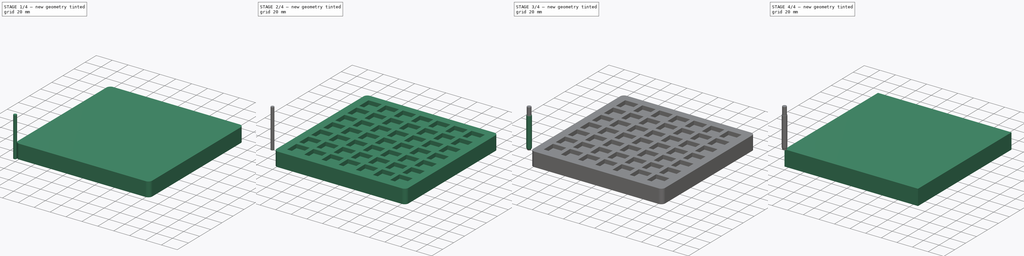
[diagram: build sequence overview — one tinted view per stage of 4, left to right]
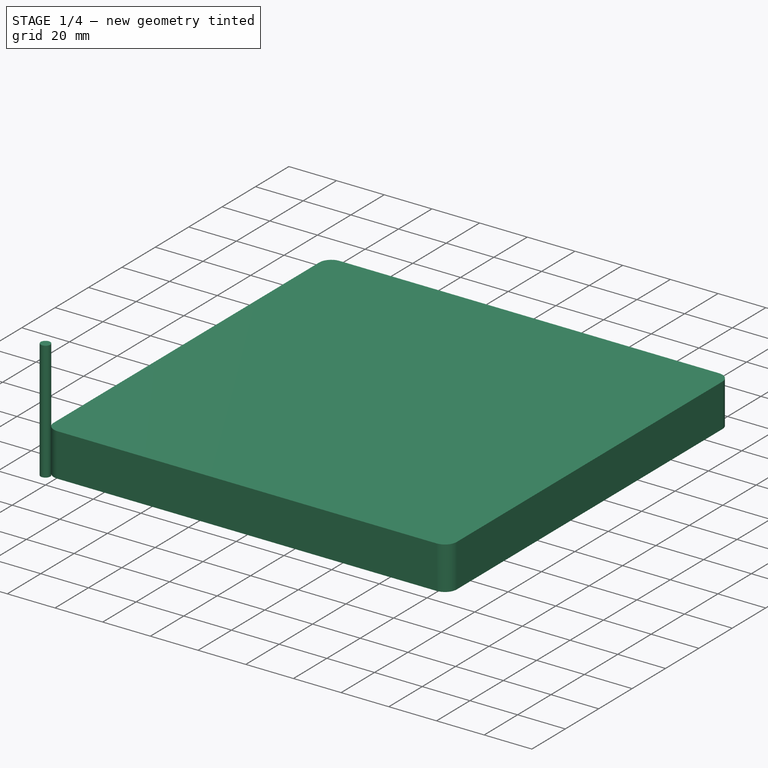
[diagram: stage 1 of 4 — iso view after this stage's code; geometry added in this stage tinted green]
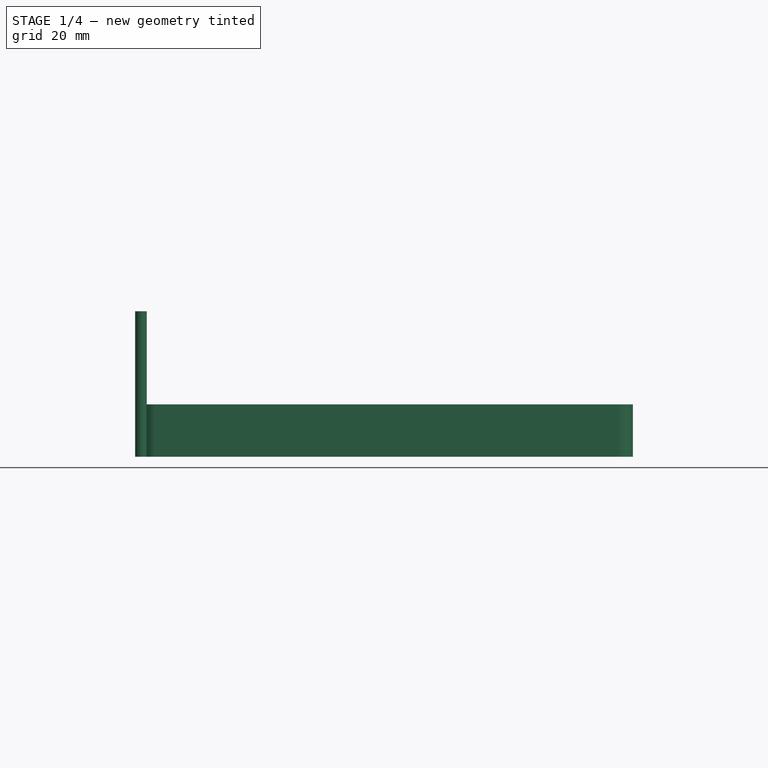
[diagram: stage 1 of 4 — front view after this stage's code; geometry added in this stage tinted green]
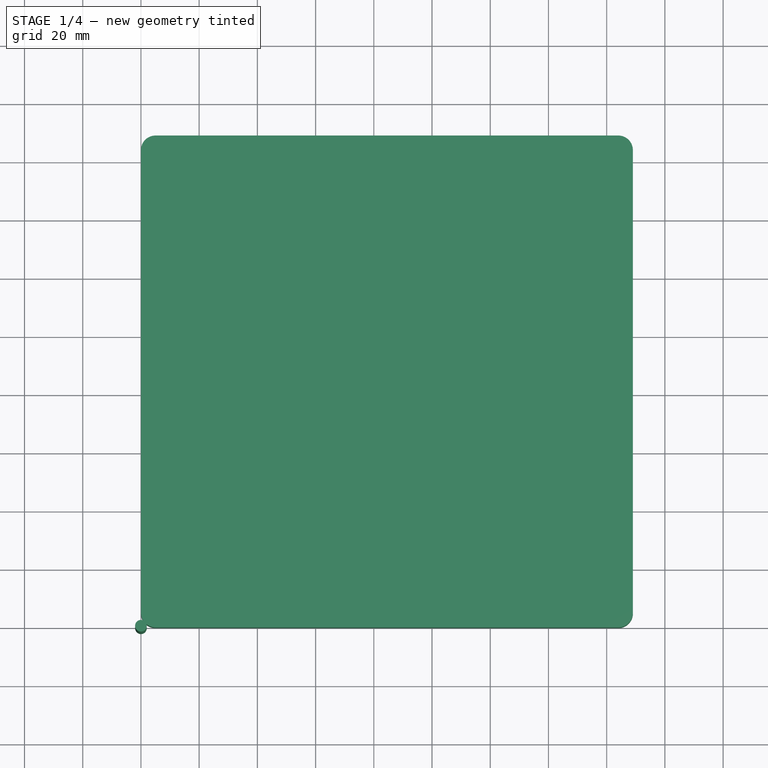
[diagram: stage 1 of 4 — top view after this stage's code; geometry added in this stage tinted green]
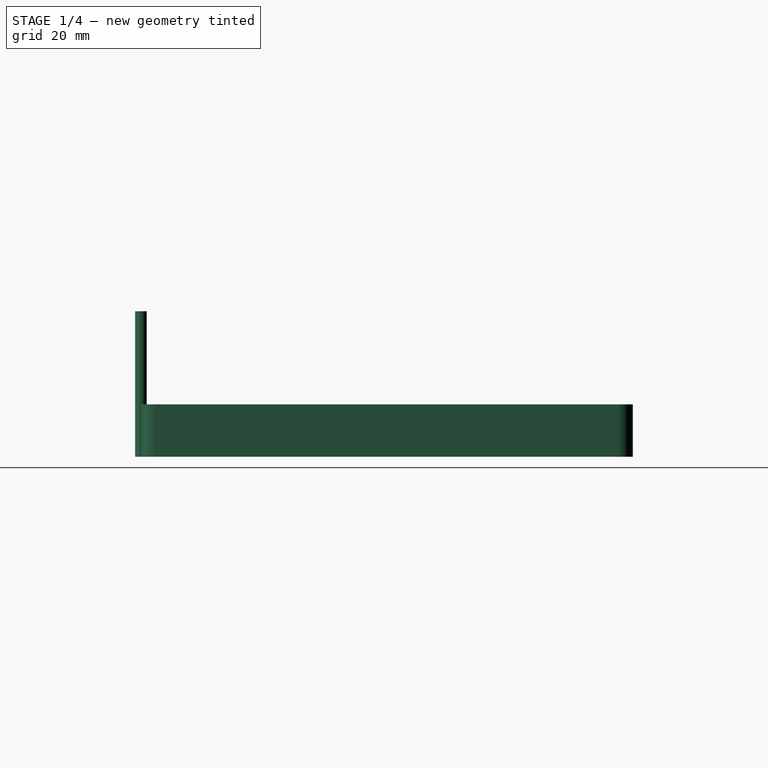
[diagram: stage 1 of 4 — right view after this stage's code; geometry added in this stage tinted green]
FCSTD DOCUMENT  (FreeCAD 0.20R29603 (Git))
Label: CAM Pratice
License: All rights reserved
LicenseURL: http://en.wikipedia.org/wiki/All_rights_reserved
objects: Path::FeaturePython×11, Part::FeaturePython×8, App::DocumentObjectGroup×3, Sketcher::SketchObject×2, PartDesign::LinearPattern×2, Spreadsheet::Sheet×1, PartDesign::Pad×1, PartDesign::Fillet×1, PartDesign::Pocket×1, PartDesign::MultiTransform×1, PartDesign::Body×1, App::FeaturePython×1
note: 22 computed .brp shape members not serialized (recipe doc carries the construction recipe); baked Part::Feature solids carry a one-line shape summary decoded from their .brp

FEATURE [Spreadsheet::Sheet] Spreadsheet
  cells = A1=dicewidth; B1(dicewidth)==17 mm; A2=diceseperator; B2(diceseperator)==5 mm; A3=frameseparator; B3(frameseparator)==10 mm; A4=dicecount; B4(dicecount)=7; A5=radius; B5(radius)==5 mm; A6=materialthickness; B6(materialthickness)==18 mm; A7=recess; B7(recess)==5 mm; A8=arraywidth; B8(arraywidth)==dicewidth * dicecount + (dicecount - 1) * diceseperator; A9=framwidth; B9(framwidth)==arraywidth + 2 * frameseparator
FEATURE [Sketcher::SketchObject] Sketch
  FullyConstrained = true
  MapMode = 5
  Support = -> [XY_Plane]
  expr: Constraints[10] = <<Spreadsheet>>.framwidth
  sketch-geometry (4):
    g0: LineSegment StartX=0 StartY=0 StartZ=0 EndX=169 EndY=0 EndZ=0
    g1: LineSegment StartX=169 StartY=0 StartZ=0 EndX=169 EndY=169 EndZ=0
    g2: LineSegment StartX=169 StartY=169 StartZ=0 EndX=0 EndY=169 EndZ=0
    g3: LineSegment StartX=0 StartY=169 StartZ=0 EndX=0 EndY=0 EndZ=0
  constraints (11):
    c: Coincident(g0,g1)
    c: Coincident(g1,g2)
    c: Coincident(g2,g3)
    c: Coincident(g3,g0)
    c: Horizontal(g0)
    c: Horizontal(g2)
    c: Vertical(g1)
    c: Vertical(g3)
    c: Coincident(g0,g-1)
    c: Equal(g2,g1)
    c: DistanceX(g0,g0) = 169
FEATURE [PartDesign::Pad] Pad
  Direction = (0,0,1)
  Length = 18
  Length2 = 10
  Profile = -> Sketch
  ReferenceAxis = -> Sketch [N_Axis]
  Type = 0
  expr: Length = <<Spreadsheet>>.materialthickness
FEATURE [PartDesign::Fillet] Fillet
  Base = -> Pad [Edge2,Edge5,Edge1,Edge8]
  BaseFeature = -> Pad
  Radius = 5
  SupportTransform = false
  UseAllEdges = false
  expr: Radius = <<Spreadsheet>>.radius
FEATURE [Path::FeaturePython] TC__6mm_Ball_End  label="TC: 6mm Ball End"  # Path/CAM operation (typed FeaturePython)
  HorizFeed = 0
  HorizRapid = 1000
  SpindleDir = 0
  SpindleSpeed = 0
  Tool = -> ToolBit003
  ToolNumber = 3
  VertFeed = 0
  VertRapid = 500
  expr: HorizRapid = SetupSheet.HorizRapid
  expr: VertRapid = SetupSheet.VertRapid
FEATURE [Part::FeaturePython] ToolBit004  label="4mm_endmill"  # Path/CAM toolbit (typed FeaturePython)
  BitPropertyNames = Chipload | CuttingEdgeHeight | Diameter | Flutes | Length | Material | ShankDiameter | SpindleDirection
  BitShape = D:/Program Files/FreeCAD 0.20/Mod\Path\Tools\Shape\endmill.fcstd
  Chipload = 0
  CuttingEdgeHeight = 30
  Diameter = 4
  File = <userpath>/Downloads/FeedsAndSpeeds-master/FeedsAndSpeeds-master/Materials\Bit\4mm_endmill.fctb
  Flutes = 0
  Length = 50
  Material = 0
  ShankDiameter = 4
  ShapeName = endmill
  SpindleDirection = 0
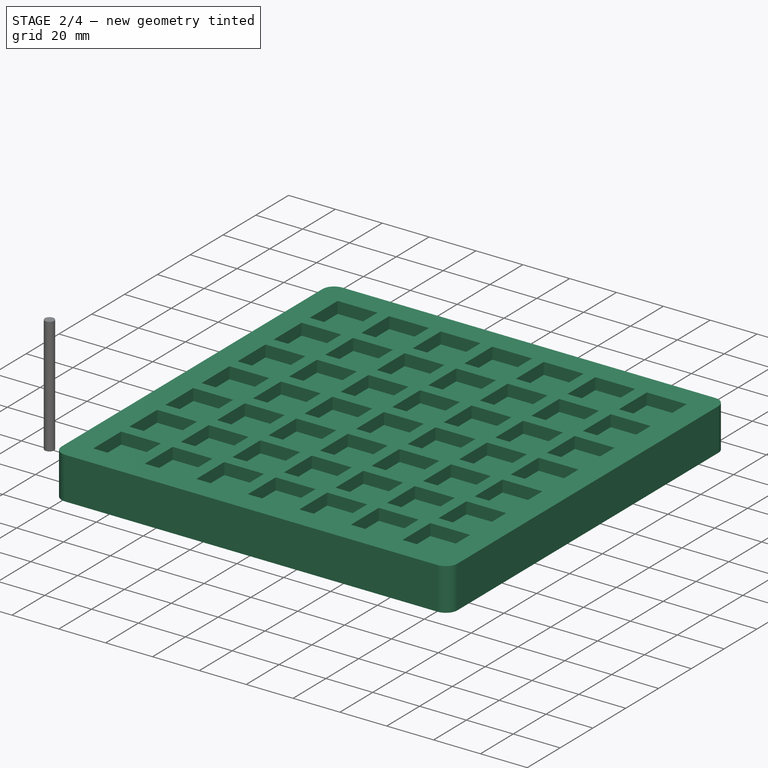
[diagram: stage 2 of 4 — iso view after this stage's code; geometry added in this stage tinted green]
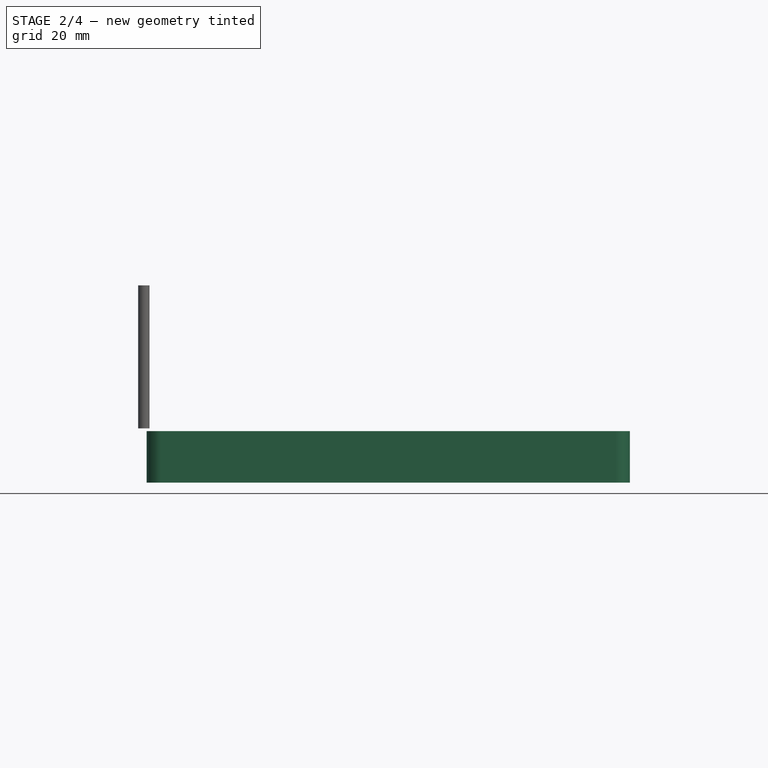
[diagram: stage 2 of 4 — front view after this stage's code; geometry added in this stage tinted green]
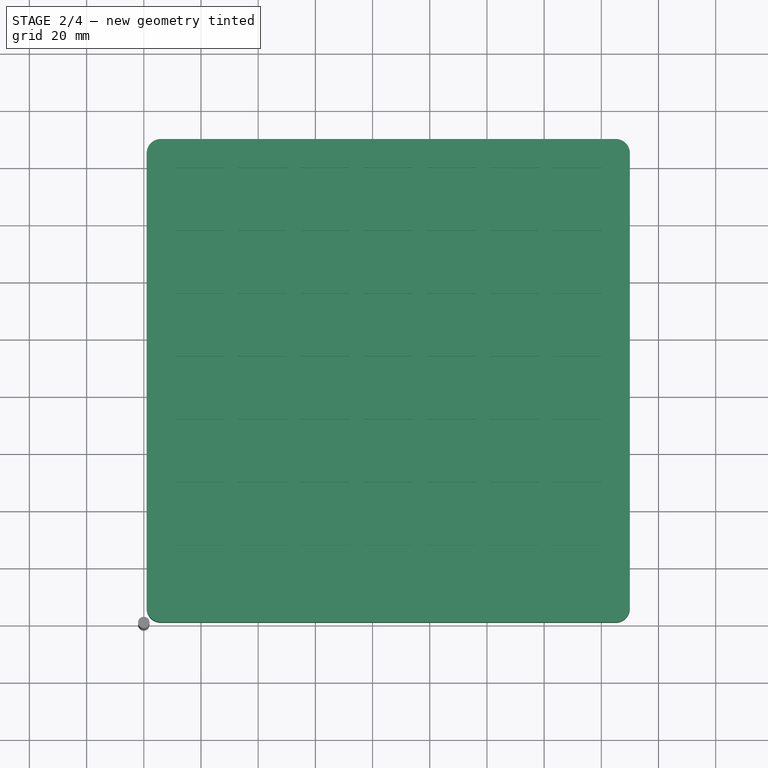
[diagram: stage 2 of 4 — top view after this stage's code; geometry added in this stage tinted green]
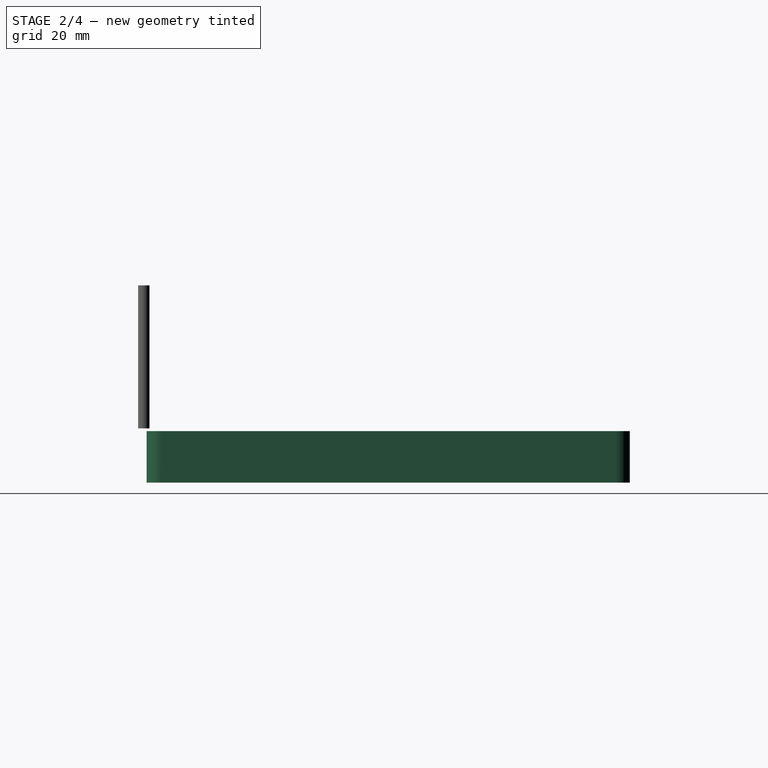
[diagram: stage 2 of 4 — right view after this stage's code; geometry added in this stage tinted green]
FEATURE [Sketcher::SketchObject] Sketch001
  FullyConstrained = true
  MapMode = 5
  Placement = pos=(0,0,18) rot=(0,0,1;0rad)
  Support = -> [Fillet]
  expr: Constraints[10] = <<Spreadsheet>>.frameseparator
  expr: Constraints[11] = <<Spreadsheet>>.frameseparator
  expr: Constraints[8] = <<Spreadsheet>>.dicewidth
  sketch-geometry (4):
    g0: LineSegment StartX=10 StartY=10 StartZ=0 EndX=27 EndY=10 EndZ=0
    g1: LineSegment StartX=27 StartY=10 StartZ=0 EndX=27 EndY=27 EndZ=0
    g2: LineSegment StartX=27 StartY=27 StartZ=0 EndX=10 EndY=27 EndZ=0
    g3: LineSegment StartX=10 StartY=27 StartZ=0 EndX=10 EndY=10 EndZ=0
  constraints (12):
    c: Coincident(g0,g1)
    c: Coincident(g1,g2)
    c: Coincident(g2,g3)
    c: Coincident(g3,g0)
    c: Horizontal(g0)
    c: Horizontal(g2)
    c: Vertical(g1)
    c: Vertical(g3)
    c: Distance(g2,g1) = 17
    c: Equal(g2,g1)
    c: Distance(g0,g-2) = 10
    c: Distance(g0,g-1) = 10
FEATURE [PartDesign::Pocket] Pocket
  BaseFeature = -> Fillet
  Direction = (0,0,-1)
  Length = 5
  Length2 = 5
  Profile = -> Sketch001
  ReferenceAxis = -> Sketch001 [N_Axis]
  Type = 0
  expr: Length = <<Spreadsheet>>.recess
FEATURE [PartDesign::LinearPattern] LinearPattern
  Direction = -> Sketch001 [H_Axis]
  Length = 132
  Occurrences = 7
  expr: Length = <<Spreadsheet>>.arraywidth - <<Spreadsheet>>.dicewidth
  expr: Occurrences = <<Spreadsheet>>.dicecount
FEATURE [PartDesign::LinearPattern] LinearPattern001
  Direction = -> Sketch001 [V_Axis]
  Length = 132
  Occurrences = 7
  expr: Length = <<Spreadsheet>>.arraywidth - <<Spreadsheet>>.dicewidth
  expr: Occurrences = <<Spreadsheet>>.dicecount
FEATURE [PartDesign::MultiTransform] MultiTransform
  BaseFeature = -> Pocket
  Originals = -> [Pocket]
  Transformations = -> [LinearPattern,LinearPattern001]
FEATURE [PartDesign::Body] Body
  Group = -> [Sketch,Pad,Fillet,Sketch001,Pocket,MultiTransform,LinearPattern,LinearPattern001]
  Origin = -> Origin
  Tip = -> MultiTransform
FEATURE [App::FeaturePython] SetupSheet  # Path/CAM operation (typed FeaturePython)
  ClearanceHeightExpression = OpStockZMax+SetupSheet.ClearanceHeightOffset
  ClearanceHeightOffset = 5
  CoolantMode = 0
  CoolantModes = None | Flood | Mist
  FinalDepthExpression = OpFinalDepth
  HorizRapid = 1000
  SafeHeightExpression = OpStockZMax+SetupSheet.SafeHeightOffset
  SafeHeightOffset = 3
  StartDepthExpression = OpStartDepth
  StepDownExpression = OpToolDiameter
  VertRapid = 500
FEATURE [Part::FeaturePython] Clone  label="Model-Body"  # Draft clone (typed FeaturePython)
  AttacherType = Attacher::AttachEngine3D
  Fuse = false
  Objects = -> [Body]
  PathResource = Model
  Placement = pos=(1,1,-19) rot=(0,0,1;0rad)
  Scale = (1,1,1)
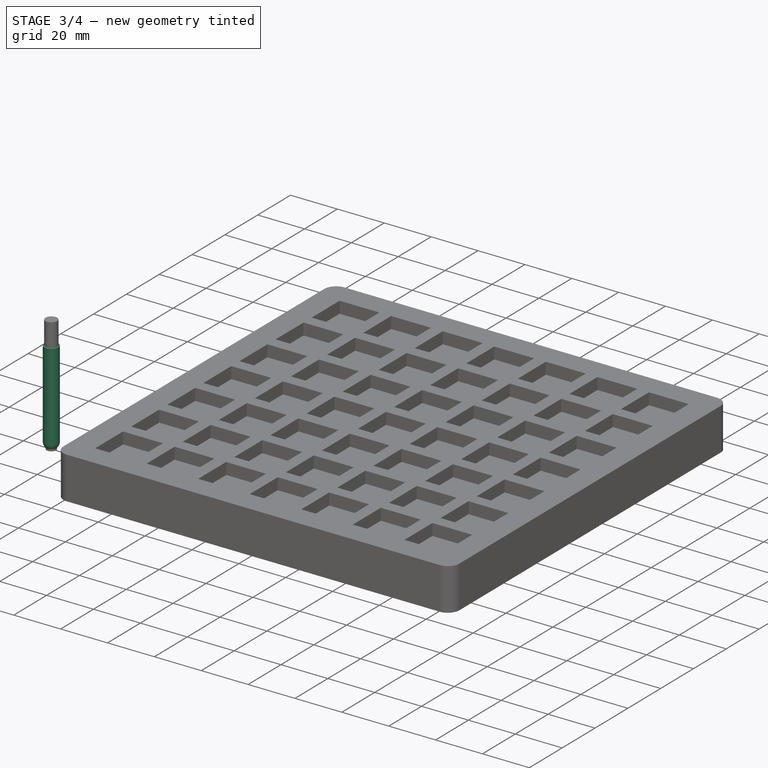
[diagram: stage 3 of 4 — iso view after this stage's code; geometry added in this stage tinted green]
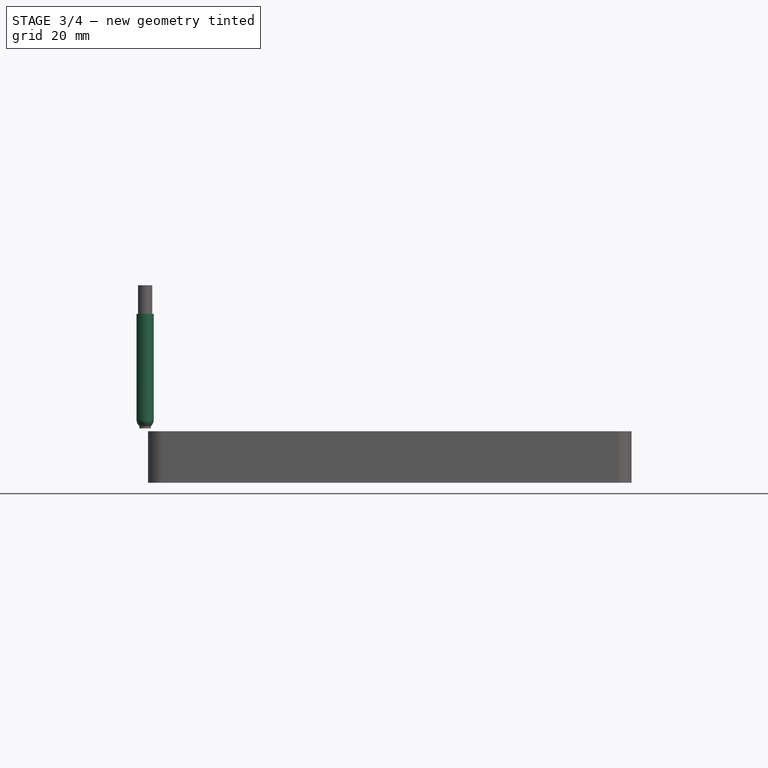
[diagram: stage 3 of 4 — front view after this stage's code; geometry added in this stage tinted green]
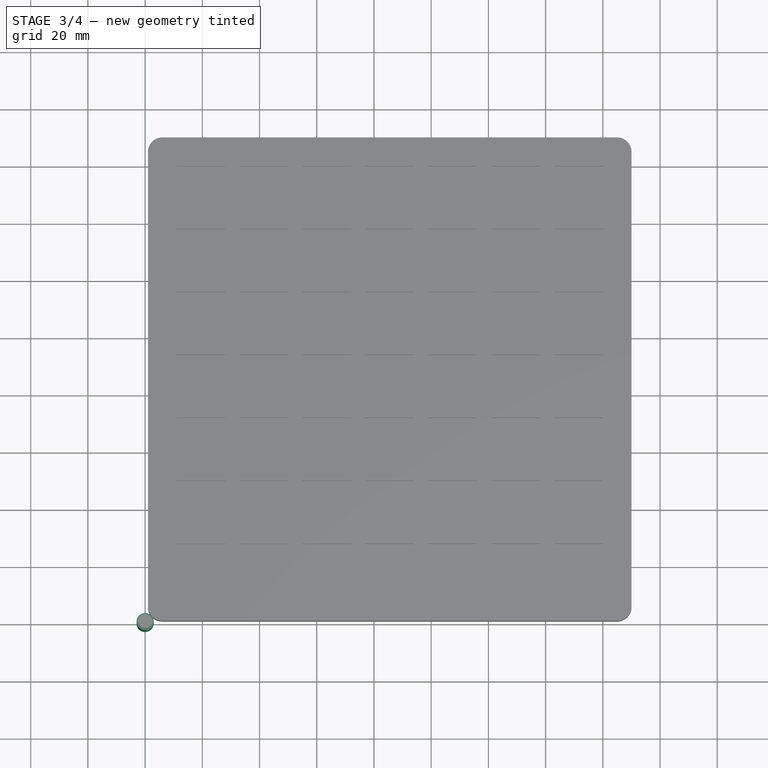
[diagram: stage 3 of 4 — top view after this stage's code; geometry added in this stage tinted green]
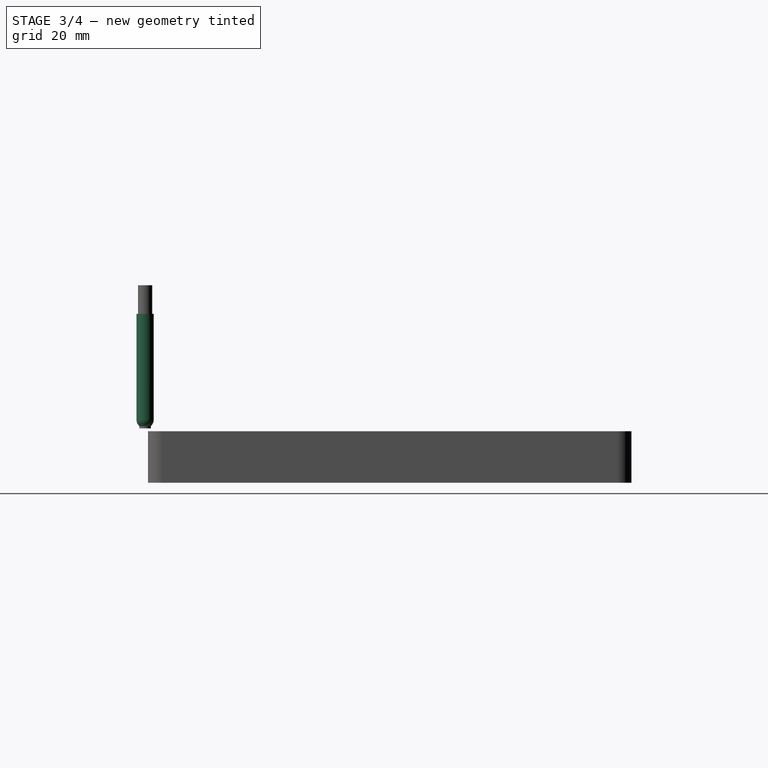
[diagram: stage 3 of 4 — right view after this stage's code; geometry added in this stage tinted green]
FEATURE [Path::FeaturePython] TC__5mm_Endmill  label="TC: 5mm Endmill"  # Path/CAM operation (typed FeaturePython)
  HorizFeed = 0
  HorizRapid = 1000
  SpindleDir = 0
  SpindleSpeed = 0
  Tool = -> ToolBit001
  ToolNumber = 1
  VertFeed = 0
  VertRapid = 500
  expr: HorizRapid = SetupSheet.HorizRapid
  expr: VertRapid = SetupSheet.VertRapid
FEATURE [Part::FeaturePython] ToolBit002  label="5mm Drill"  # Path/CAM toolbit (typed FeaturePython)
  BitPropertyNames = Chipload | Diameter | Flutes | Length | Material | TipAngle
  BitShape = D:/Program Files/FreeCAD 0.20/Mod\Path\Tools\Shape\drill.fcstd
  Chipload = 0
  Diameter = 5
  File = <userpath>/Downloads/FeedsAndSpeeds-master/FeedsAndSpeeds-master/Materials\Bit\5mm_Drill.fctb
  Flutes = 0
  Length = 50
  Material = 0
  ShapeName = drill
  TipAngle = 119
FEATURE [Path::FeaturePython] TC__5mm_Drill  label="TC: 5mm Drill"  # Path/CAM operation (typed FeaturePython)
  HorizFeed = 0
  HorizRapid = 1000
  SpindleDir = 0
  SpindleSpeed = 0
  Tool = -> ToolBit002
  ToolNumber = 2
  VertFeed = 0
  VertRapid = 500
  expr: HorizRapid = SetupSheet.HorizRapid
  expr: VertRapid = SetupSheet.VertRapid
FEATURE [Part::FeaturePython] ToolBit003  label="6mm Ball End"  # Path/CAM toolbit (typed FeaturePython)
  BitPropertyNames = Chipload | CuttingEdgeHeight | Diameter | Flutes | Length | Material | ShankDiameter
  BitShape = D:/Program Files/FreeCAD 0.20/Mod\Path\Tools\Shape\ballend.fcstd
  Chipload = 0
  CuttingEdgeHeight = 40
  Diameter = 6
  File = <userpath>/Downloads/FeedsAndSpeeds-master/FeedsAndSpeeds-master/Materials\Bit\6mm_Ball_End.fctb
  Flutes = 0
  Length = 50
  Material = 0
  ShankDiameter = 3
  ShapeName = ballend
FEATURE [Path::FeaturePython] TC__4mm_endmill  label="TC: 4mm_endmill"  # Path/CAM operation (typed FeaturePython)
  HorizFeed = 30
  HorizRapid = 1000
  SpindleDir = 0
  SpindleSpeed = 20000
  Tool = -> ToolBit004
  ToolNumber = 10
  VertFeed = 15
  VertRapid = 500
  expr: HorizRapid = SetupSheet.HorizRapid
  expr: VertRapid = SetupSheet.VertRapid
FEATURE [Part::FeaturePython] ToolBit015  label="4mm_endmill012"  # Path/CAM toolbit (typed FeaturePython)
  BitPropertyNames = Chipload | CuttingEdgeHeight | Diameter | Flutes | Length | Material | ShankDiameter | SpindleDirection
  BitShape = D:/Program Files/FreeCAD 0.20/Mod\Path\Tools\Shape\endmill.fcstd
  Chipload = 0
  CuttingEdgeHeight = 30
  Diameter = 4
  Flutes = 0
  Length = 50
  Material = 0
  ShankDiameter = 4
  ShapeName = endmill
  SpindleDirection = 0
FEATURE [Path::FeaturePython] _mm_endmill010  label="4mm_endmill011"  # Path/CAM operation (typed FeaturePython)
  HorizFeed = 0
  HorizRapid = 1000
  SpindleDir = 0
  SpindleSpeed = 0
  Tool = -> ToolBit015
  ToolNumber = 11
  VertFeed = 0
  VertRapid = 500
  expr: HorizRapid = SetupSheet.HorizRapid
  expr: VertRapid = SetupSheet.VertRapid
FEATURE [App::DocumentObjectGroup] Tools
  Group = -> [TC__Default_Tool,TC__5mm_Endmill,TC__5mm_Drill,TC__6mm_Ball_End,TC__4mm_endmill,_mm_endmill010]
FEATURE [Path::FeaturePython] Pocket_Shape  # Path/CAM operation (typed FeaturePython)
  Active = true
  AreaParams:
    Tolerance = 1e-07
    FitArcs = True
    Simplify = False
    CleanDistance = 0.0
    Accuracy = 0.01
    Unit = 1.0
    MinArcPoints = 4
    MaxArcPoints = 100
    ClipperScale = 10000000.0
    Fill = 0
    Coplanar = 0
    Reorient = True
    Outline = False
    Explode = False
    OpenMode = 0
    Deflection = 0.01
    SubjectFill = 0
    ClipFill = 0
    Offset = 0.0
    ExtraPass = 0
    Stepover = 0.0
    LastStepover = 0.0
    JoinType = 0
    EndType = 0
    MiterLimit = 2.0
    RoundPrecision = 0.0
    PocketMode = 4
    ToolRadius = 2.0
    PocketExtraOffset = 0.0
    PocketStepover = 2.0
    PocketLastStepover = 0.0
    FromCenter = True
    Angle = 45.0
    AngleShift = 0.0
    Shift = 0.0
    Thicken = False
    SectionCount = -1
    Stepdown = 1.0
    SectionOffset = 0.0
    SectionTolerance = 1e-06
    SectionMode = 2
    Project = False
  Base = -> [Clone]
  ClearanceHeight = 5
  CoolantMode = 0
  CutMode = 0
  CycleTime = 00:09:51
  ExtensionCorners = true
  ExtensionLengthDefault = 2
  ExtraOffset = 0
  FinalDepth = -6
  FinishDepth = 0
  KeepToolDown = false
  MinTravel = false
  OffsetPattern = 2
  OpFinalDepth = -6
  OpStartDepth = 0
  OpStockZMax = 0
  OpStockZMin = -20
  OpToolDiameter = 4
  PathParams = {'orientation': 1, 'feedrate': 30.0, 'feedrate_v': 15.0, 'verbose': True, 'resume_height': 3.0, 'retraction': 5.0, 'return_end': True, 'preamble': False, 'start': Vector (157.99999990000003, 123.0, 5.0)}
  PocketLastStepOver = 0
  SafeHeight = 3
  SplitArcs = false
  StartAt = 0
  StartDepth = 0
  StartPoint = (0,0,0)
  StepDown = 4
  StepOver = 50
  ToolController = -> TC__4mm_endmill
  UseOutline = false
  UseStartPoint = false
  ZigZagAngle = 45
  expr: ClearanceHeight = OpStockZMax + SetupSheet.ClearanceHeightOffset
  expr: ExtensionLengthDefault = OpToolDiameter / 2
  expr: FinalDepth = OpFinalDepth
  expr: SafeHeight = OpStockZMax + SetupSheet.SafeHeightOffset
  expr: StartDepth = OpStartDepth
  expr: StepDown = OpToolDiameter
FEATURE [Path::FeaturePython] Deburr  # Path/CAM operation (typed FeaturePython)
  Active = true
  Base = -> [Clone]
  ClearanceHeight = 5
  CoolantMode = 0
  CycleTime = 00:02:11
  Direction = 0
  EntryPoint = 0
  ExtraDepth = 0.5
  Join = 0
  OpStockZMax = 0
  OpStockZMin = -20
  OpToolDiameter = 4
  SafeHeight = 3
  Side = 1
  StartDepth = 0
  StepDown = 0
  ToolController = -> TC__4mm_endmill
  Width = 1
  expr: ClearanceHeight = OpStockZMax + SetupSheet.ClearanceHeightOffset
  expr: SafeHeight = OpStockZMax + SetupSheet.SafeHeightOffset
  expr: StepDown = 0 mm
FEATURE [Path::FeaturePython] Profile  # Path/CAM operation (typed FeaturePython)
  Active = true
  AreaParams:
    Tolerance = 1e-07
    FitArcs = True
    Simplify = False
    CleanDistance = 0.0
    Accuracy = 0.01
    Unit = 1.0
    MinArcPoints = 4
    MaxArcPoints = 100
    ClipperScale = 10000000.0
    Fill = 0
    Coplanar = 0
    Reorient = True
    Outline = False
    Explode = False
    OpenMode = 0
    Deflection = 0.01
    SubjectFill = 0
    ClipFill = 0
    Offset = -2.0
    ExtraPass = 0
    Stepover = 0.0
    LastStepover = 0.0
    JoinType = 0
    EndType = 0
    MiterLimit = 2.0
    RoundPrecision = 0.0
    PocketMode = 0
    ToolRadius = 1.0
    PocketExtraOffset = 0.0
    PocketStepover = 0.0
    PocketLastStepover = 0.0
    FromCenter = False
    Angle = 45.0
    AngleShift = 0.0
    Shift = 0.0
    Thicken = False
    SectionCount = -1
    Stepdown = 1.0
    SectionOffset = 0.0
    SectionTolerance = 1e-06
    SectionMode = 2
    Project = False
  Base = -> [Clone]
  ClearanceHeight = 5
  CoolantMode = 0
  CycleTime = 00:03:46
  Direction = 0
  FinalDepth = -6
  HandleMultipleFeatures = 0
  JoinType = 0
  MiterLimit = 0.1
  OffsetExtra = 0
  OpFinalDepth = -6
  OpStartDepth = 0
  OpStockZMax = 0
  OpStockZMin = -20
  OpToolDiameter = 4
  PathParams = {'orientation': 1, 'feedrate': 30.0, 'feedrate_v': 15.0, 'verbose': True, 'resume_height': 3.0, 'retraction': 5.0, 'return_end': True, 'preamble': False}
  SafeHeight = 3
  Side = 1
  SplitArcs = false
  StartDepth = 0
  StartPoint = (0,0,0)
  StepDown = 4
  ToolController = -> TC__4mm_endmill
  UseComp = true
  UseStartPoint = false
  processCircles = false
  processHoles = false
  processPerimeter = true
  expr: ClearanceHeight = OpStockZMax + SetupSheet.ClearanceHeightOffset
  expr: FinalDepth = OpFinalDepth
  expr: SafeHeight = OpStockZMax + SetupSheet.SafeHeightOffset
  expr: StartDepth = OpStartDepth
  expr: StepDown = OpToolDiameter
FEATURE [Path::FeaturePython] DressupTag  # Path/CAM operation (typed FeaturePython)
  Angle = 45
  Base = -> Profile
  Height = 3
  Radius = 0
  SegmentationFactor = 0
  Width = 1.3
FEATURE [App::DocumentObjectGroup] Operations
  Group = -> [Pocket_Shape,Deburr,DressupTag]
FEATURE [Path::FeaturePython] Job  # Path/CAM operation (typed FeaturePython)
  CycleTime = 00:15:48
  Fixtures = G54
  GeometryTolerance = 0.01
  JobType = 0
  Model = -> Model
  Operations = -> Operations
  OrderOutputBy = 0
  PostProcessor = 1
  SetupSheet = -> SetupSheet
  SplitOutput = false
  Stock = -> Stock
  Tools = -> Tools
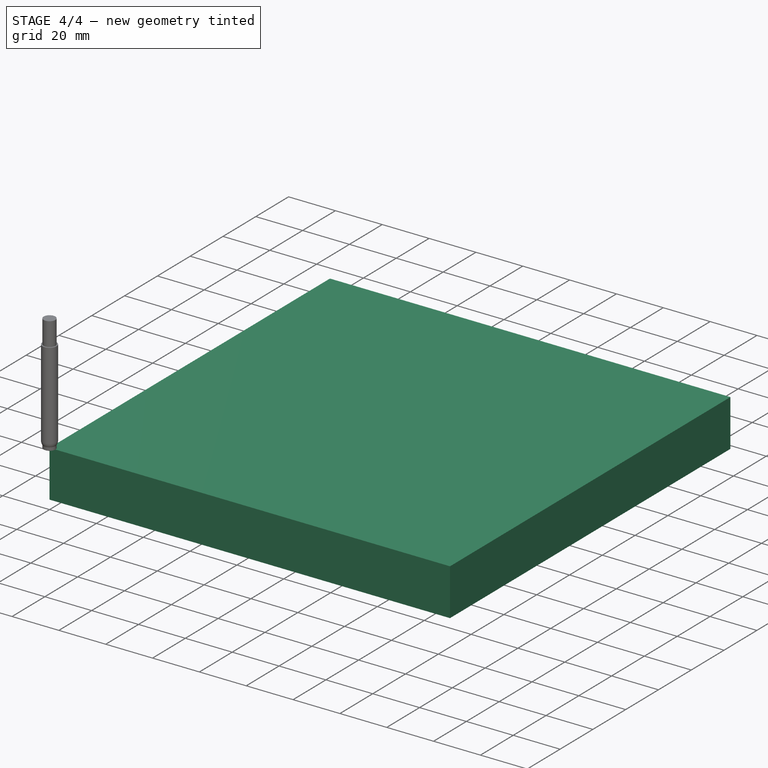
[diagram: stage 4 of 4 — iso view after this stage's code; geometry added in this stage tinted green]
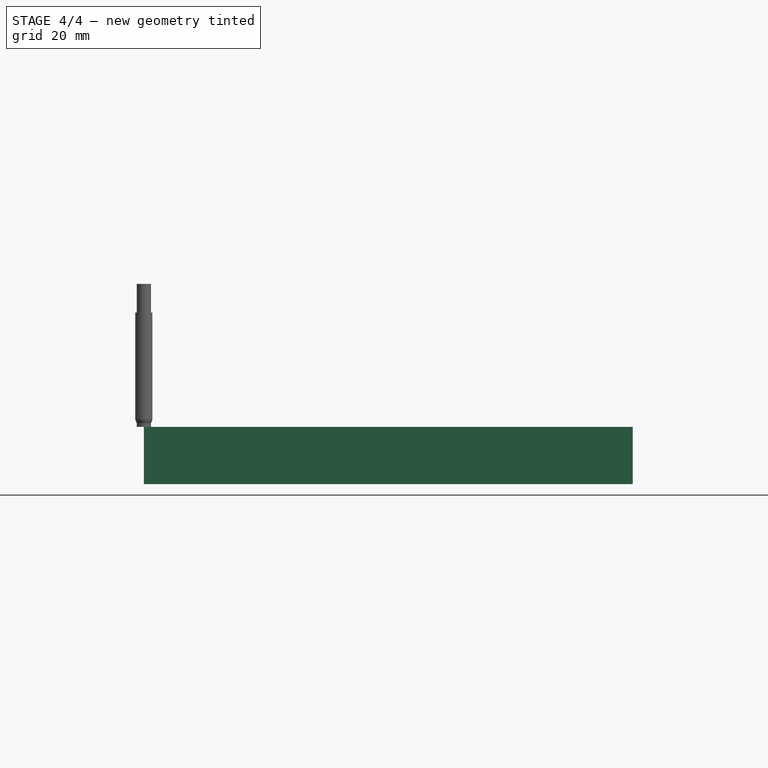
[diagram: stage 4 of 4 — front view after this stage's code; geometry added in this stage tinted green]
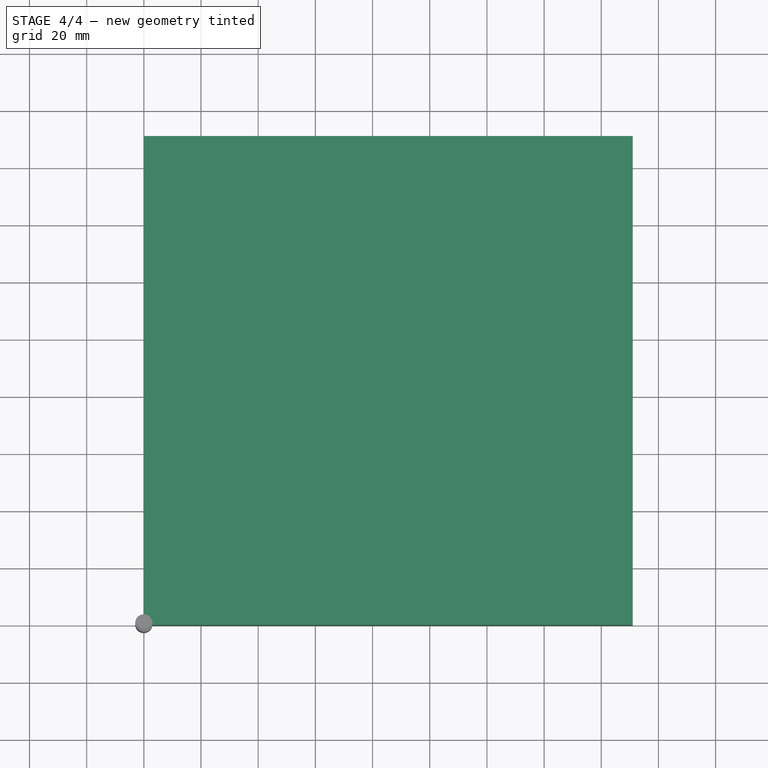
[diagram: stage 4 of 4 — top view after this stage's code; geometry added in this stage tinted green]
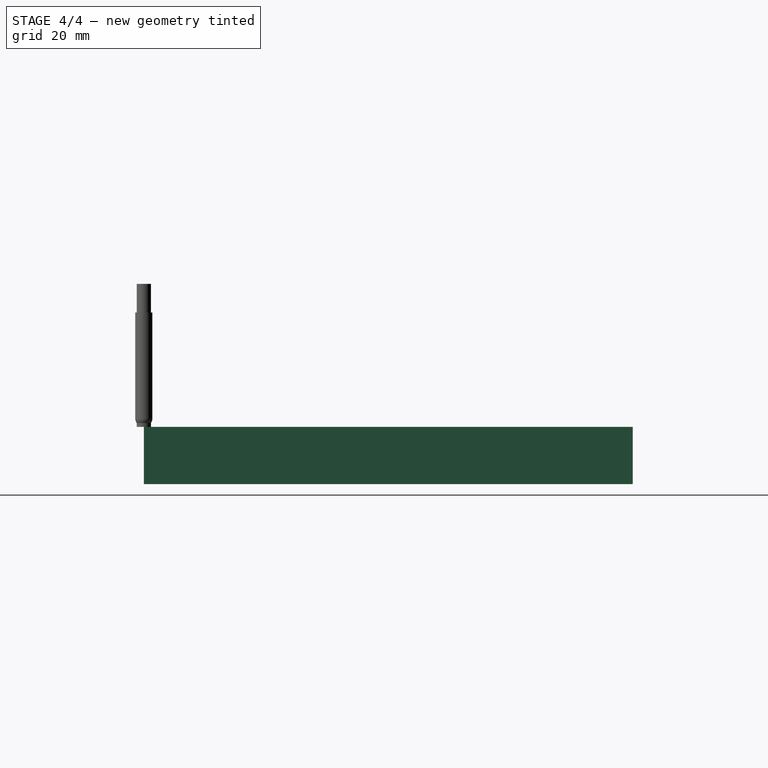
[diagram: stage 4 of 4 — right view after this stage's code; geometry added in this stage tinted green]
FEATURE [App::DocumentObjectGroup] Model
  Group = -> [Clone]
FEATURE [Part::FeaturePython] ToolBit  label="Endmill"  # Path/CAM toolbit (typed FeaturePython)
  BitPropertyNames = Chipload | CuttingEdgeHeight | Diameter | Flutes | Length | Material | ShankDiameter | SpindleDirection
  BitShape = D:/Program Files/FreeCAD 0.20/Mod\Path\Tools\Shape\endmill.fcstd
  Chipload = 0
  CuttingEdgeHeight = 30
  Diameter = 5
  Flutes = 0
  Length = 50
  Material = 0
  ShankDiameter = 3
  ShapeName = endmill
  SpindleDirection = 0
FEATURE [Path::FeaturePython] TC__Default_Tool  label="TC: Default Tool"  # Path/CAM operation (typed FeaturePython)
  HorizFeed = 0
  HorizRapid = 1000
  SpindleDir = 0
  SpindleSpeed = 0
  Tool = -> ToolBit
  ToolNumber = 1
  VertFeed = 0
  VertRapid = 500
  expr: HorizRapid = SetupSheet.HorizRapid
  expr: VertRapid = SetupSheet.VertRapid
FEATURE [Part::FeaturePython] Stock  # WARN: FeaturePython — macro-defined, semantics opaque (R4)
  Base = -> Model
  ExtXneg = 1
  ExtXpos = 1
  ExtYneg = 1
  ExtYpos = 1
  ExtZneg = 1
  ExtZpos = 1
  Placement = pos=(1,1,-19) rot=(0,0,1;0rad)
  StockType = FromBase
FEATURE [Part::FeaturePython] ToolBit001  label="5mm Endmill"  # Path/CAM toolbit (typed FeaturePython)
  BitPropertyNames = Chipload | CuttingEdgeHeight | Diameter | Flutes | Length | Material | ShankDiameter | SpindleDirection
  BitShape = D:/Program Files/FreeCAD 0.20/Mod\Path\Tools\Shape\endmill.fcstd
  Chipload = 0
  CuttingEdgeHeight = 30
  Diameter = 5
  File = <userpath>/Downloads/FeedsAndSpeeds-master/FeedsAndSpeeds-master/Materials\Bit\5mm_Endmill.fctb
  Flutes = 0
  Length = 50
  Material = 0
  ShankDiameter = 3
  ShapeName = endmill
  SpindleDirection = 0
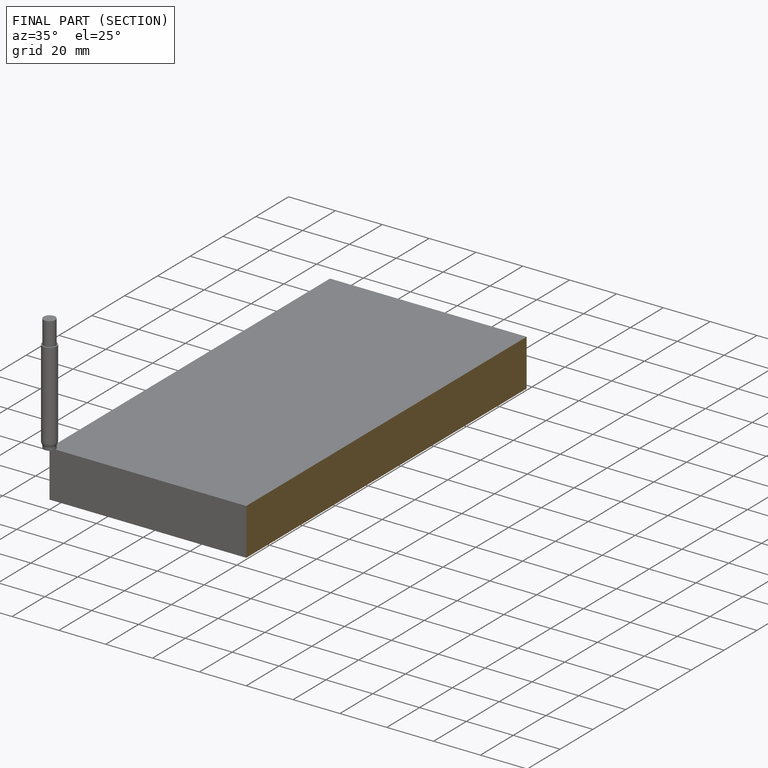
[diagram: finished part — half-section view (interior)]
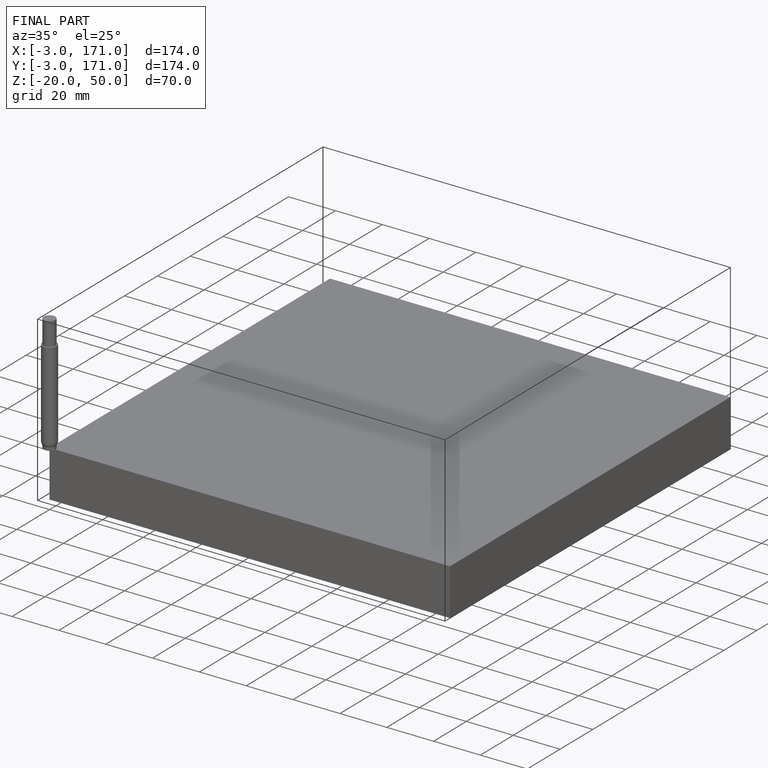
[diagram: finished part — iso view with bounding-box wireframe]
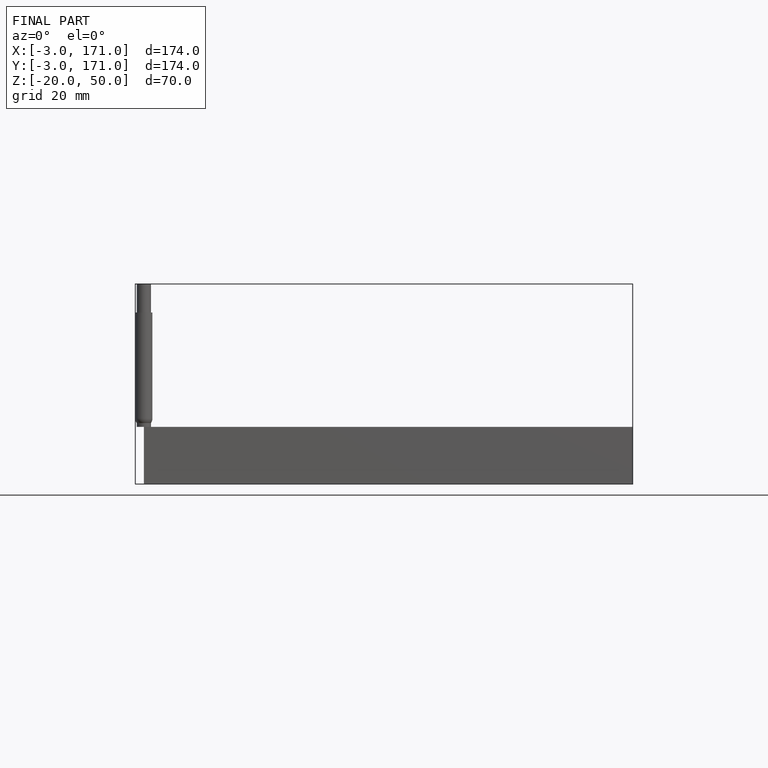
[diagram: finished part — front view with bounding-box wireframe]
